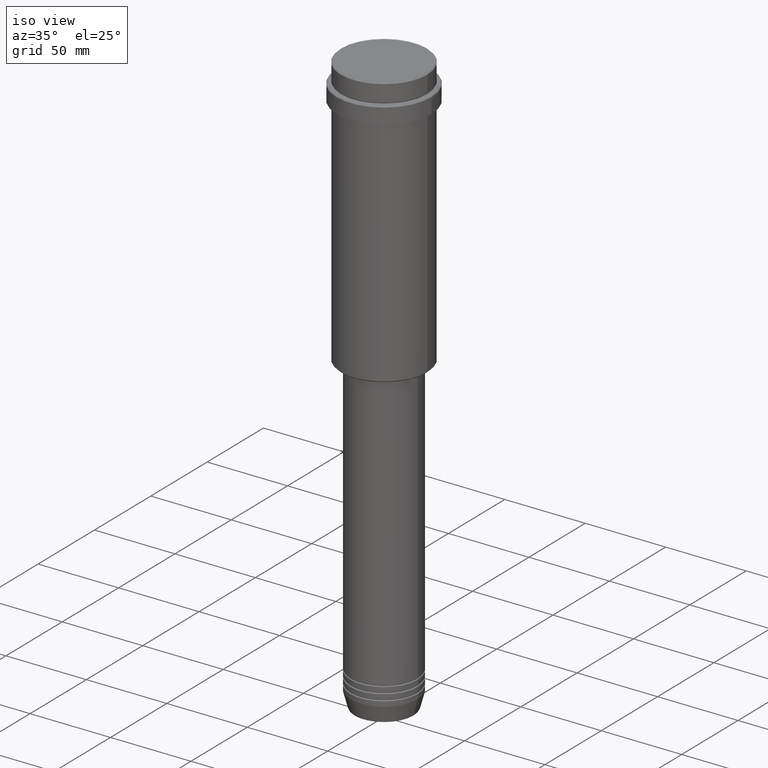
[diagram: clean part render]
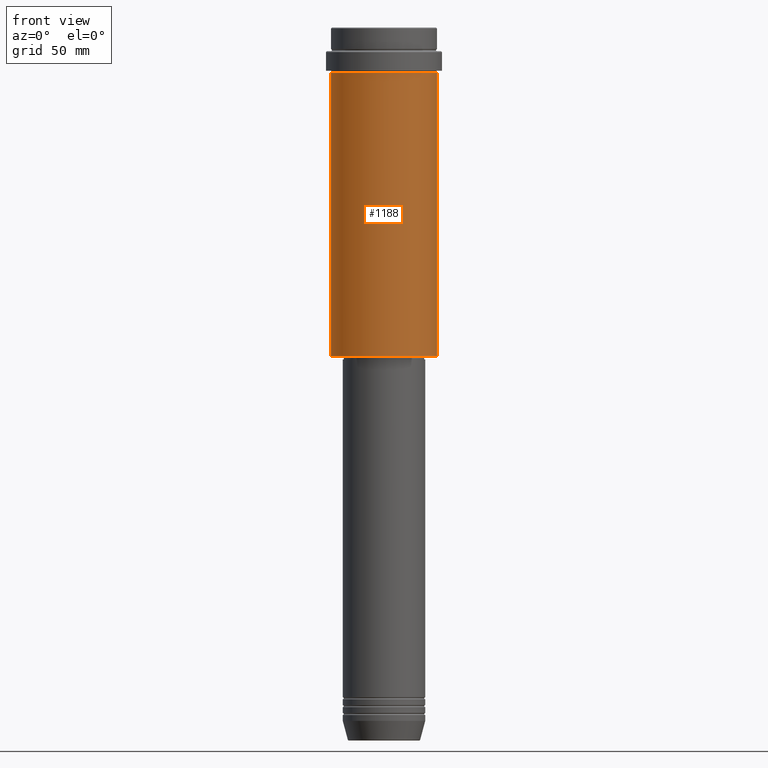
[diagram: tour spotlight — one face highlighted and labeled with its STEP entity id]
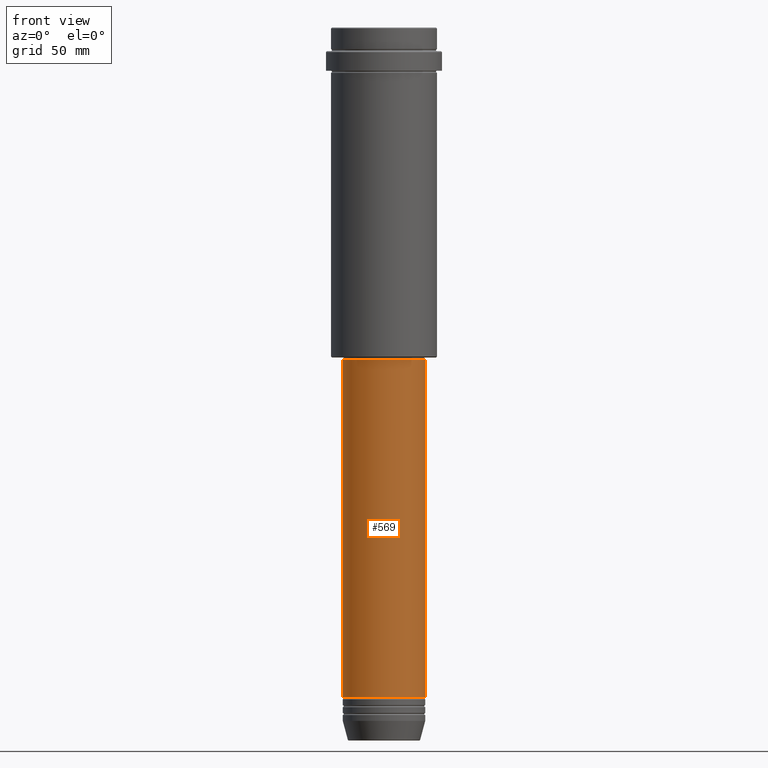
[diagram: tour spotlight — one face highlighted and labeled with its STEP entity id]
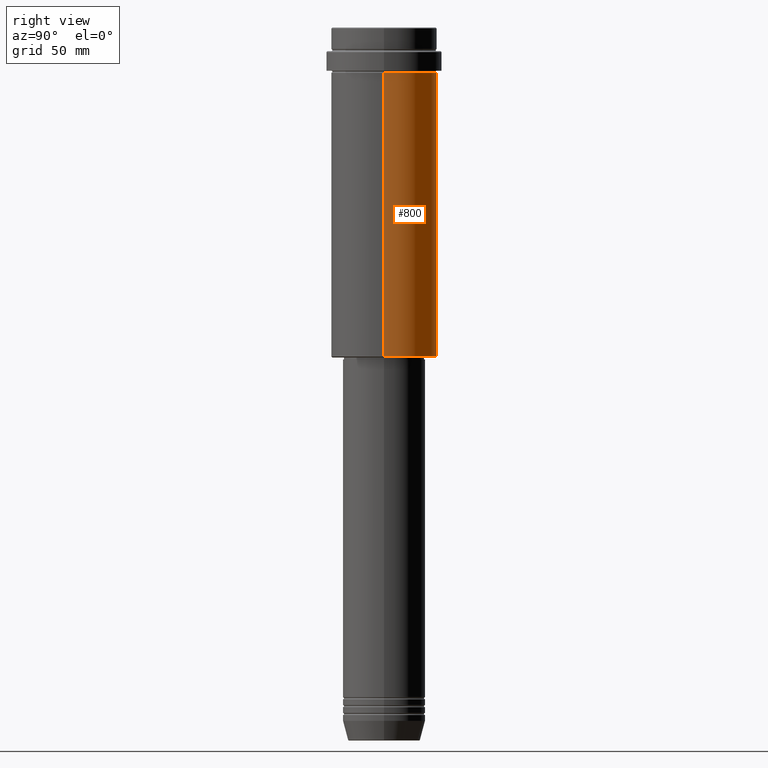
[diagram: tour spotlight — one face highlighted and labeled with its STEP entity id]
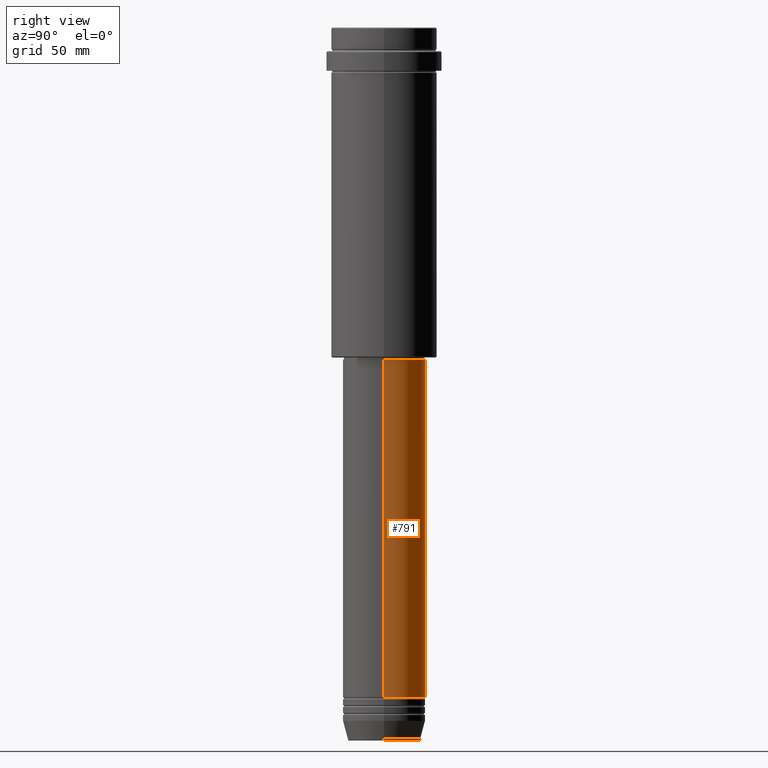
[diagram: tour spotlight — one face highlighted and labeled with its STEP entity id]
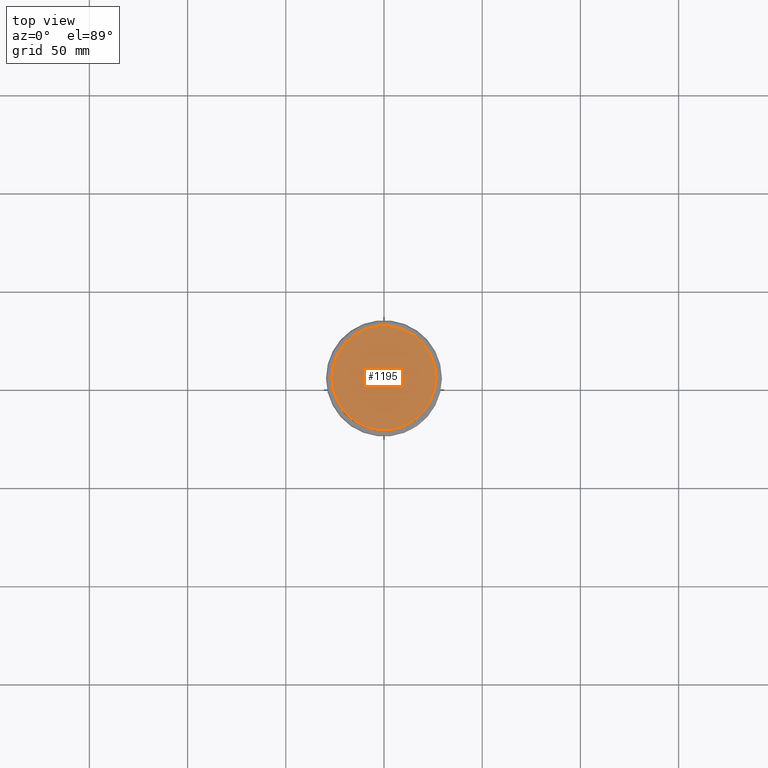
[diagram: tour spotlight — one face highlighted and labeled with its STEP entity id]
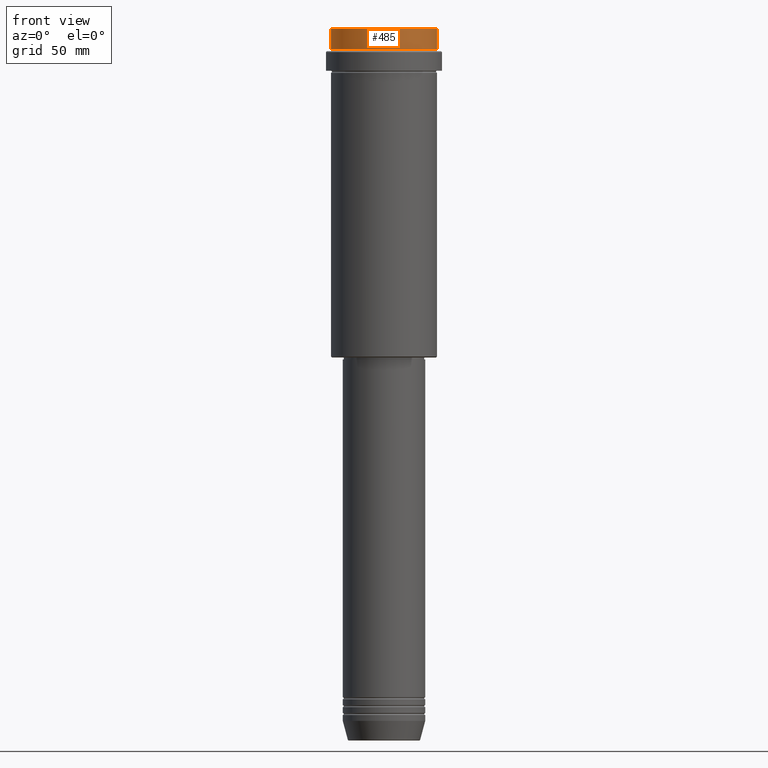
[diagram: tour spotlight — one face highlighted and labeled with its STEP entity id]
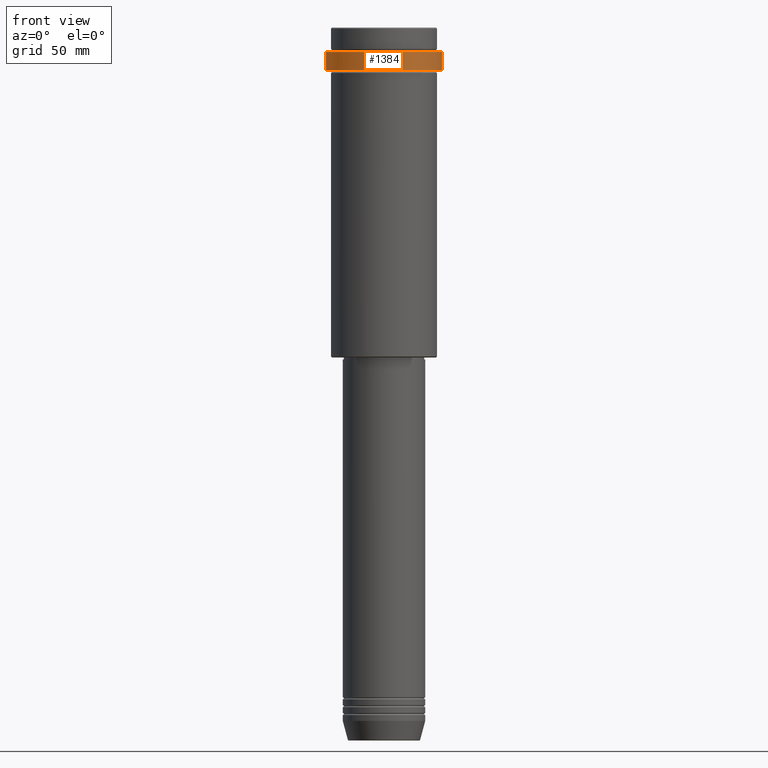
[diagram: tour spotlight — one face highlighted and labeled with its STEP entity id]
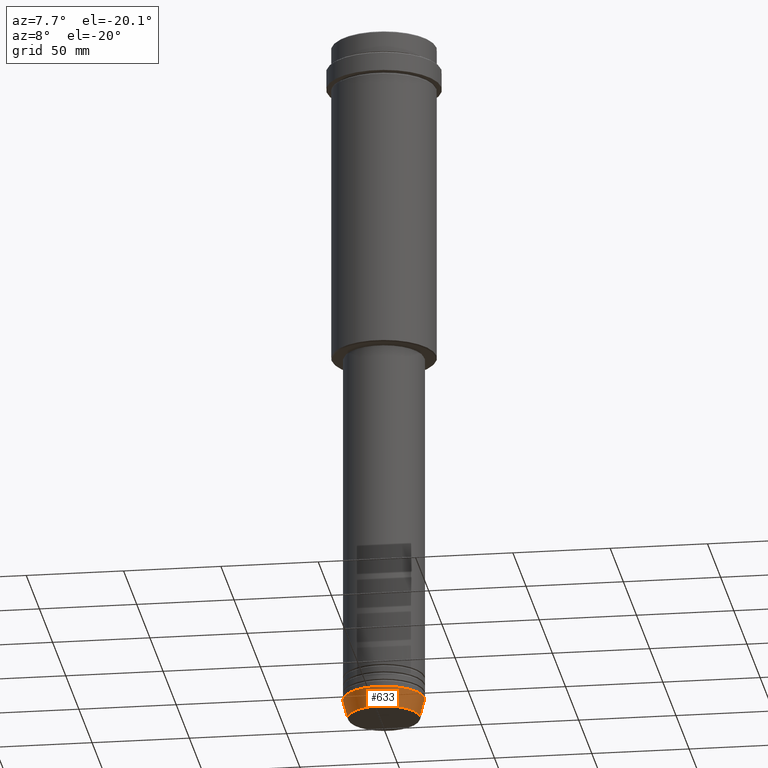
[diagram: tour spotlight — one face highlighted and labeled with its STEP entity id]
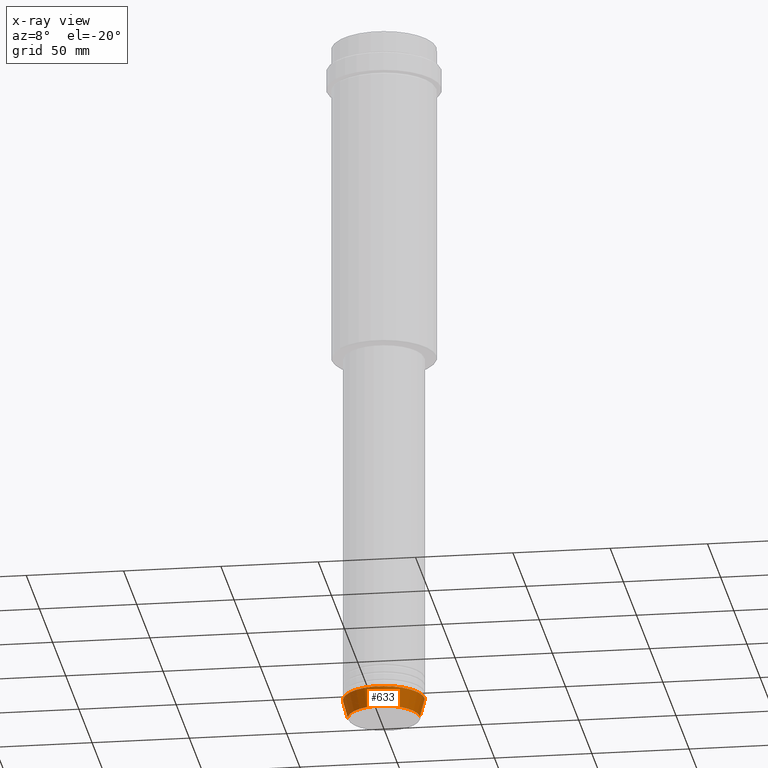
[diagram: x-ray of the same camera — body ghosted, this tour face saturated]
A machine part: a face-by-face anatomy tour. The part has 52 B-rep faces; the first image is the clean iso view, then the 8 largest visible faces are spotlighted one at a time (largest first), each with its STEP entity span.

Face 1 — front view, entity #1188. In plain terms, the highlighted cylindrical surface (partial cylindrical patch) has radius 27 mm, axis along (-0, -0, 1).
Definition (entity closure, byte-faithful):
#18 = VERTEX_POINT ( 'NONE', #69 ) ;
#43 = EDGE_CURVE ( 'NONE', #18, #999, #160, .T. ) ;
#69 = CARTESIAN_POINT ( 'NONE',  ( 27.00000000000000355, 0.000000000000000000, -167.5000000000000568 ) ) ;
#73 = VECTOR ( 'NONE', #132, 1000.000000000000000 ) ;
#87 = CARTESIAN_POINT ( 'NONE',  ( 0.000000000000000000, 0.000000000000000000, -167.5000000000000568 ) ) ;
#132 = DIRECTION ( 'NONE',  ( -0.000000000000000000, -0.000000000000000000, 1.000000000000000000 ) ) ;
#160 = LINE ( 'NONE', #1357, #73 ) ;
#190 = AXIS2_PLACEMENT_3D ( 'NONE', #1174, #194, #314 ) ;
#194 = DIRECTION ( 'NONE',  ( -0.000000000000000000, -0.000000000000000000, 1.000000000000000000 ) ) ;
#204 = CIRCLE ( 'NONE', #1014, 27.00000000000000355 ) ;
#208 = DIRECTION ( 'NONE',  ( 1.000000000000000000, 0.000000000000000000, 0.000000000000000000 ) ) ;
#222 = LINE ( 'NONE', #958, #846 ) ;
#314 = DIRECTION ( 'NONE',  ( 1.000000000000000000, 0.000000000000000000, 0.000000000000000000 ) ) ;
#435 = CARTESIAN_POINT ( 'NONE',  ( 0.000000000000000000, 0.000000000000000000, -23.00000000000001421 ) ) ;
#448 = CYLINDRICAL_SURFACE ( 'NONE', #190, 27.00000000000000355 ) ;
#526 = DIRECTION ( 'NONE',  ( -0.000000000000000000, -0.000000000000000000, 1.000000000000000000 ) ) ;
#619 = VERTEX_POINT ( 'NONE', #718 ) ;
#718 = CARTESIAN_POINT ( 'NONE',  ( -27.00000000000000355, 3.306546357697854128E-15, -167.5000000000000568 ) ) ;
#738 = ORIENTED_EDGE ( 'NONE', *, *, #1161, .F. ) ;
#766 = EDGE_CURVE ( 'NONE', #619, #1366, #222, .T. ) ;
#785 = CIRCLE ( 'NONE', #991, 27.00000000000000355 ) ;
#846 = VECTOR ( 'NONE', #1398, 1000.000000000000000 ) ;
#864 = DIRECTION ( 'NONE',  ( -0.000000000000000000, -0.000000000000000000, 1.000000000000000000 ) ) ;
#956 = DIRECTION ( 'NONE',  ( -1.000000000000000000, 0.000000000000000000, 0.000000000000000000 ) ) ;
#958 = CARTESIAN_POINT ( 'NONE',  ( -27.00000000000000355, 3.306546357697854128E-15, 0.000000000000000000 ) ) ;
#991 = AXIS2_PLACEMENT_3D ( 'NONE', #87, #526, #956 ) ;
#999 = VERTEX_POINT ( 'NONE', #1382 ) ;
#1014 = AXIS2_PLACEMENT_3D ( 'NONE', #435, #864, #208 ) ;
#1017 = ORIENTED_EDGE ( 'NONE', *, *, #1201, .T. ) ;
#1019 = EDGE_LOOP ( 'NONE', ( #1167, #1017, #1143, #738 ) ) ;
#1143 = ORIENTED_EDGE ( 'NONE', *, *, #43, .T. ) ;
#1161 = EDGE_CURVE ( 'NONE', #1366, #999, #204, .T. ) ;
#1167 = ORIENTED_EDGE ( 'NONE', *, *, #766, .F. ) ;
#1174 = CARTESIAN_POINT ( 'NONE',  ( 0.000000000000000000, 0.000000000000000000, 0.000000000000000000 ) ) ;
#1188 = ADVANCED_FACE ( 'NONE', ( #1296 ), #448, .T. ) ;
#1201 = EDGE_CURVE ( 'NONE', #619, #18, #785, .T. ) ;
#1268 = CARTESIAN_POINT ( 'NONE',  ( -27.00000000000000355, 3.306546357697854128E-15, -23.00000000000001421 ) ) ;
#1296 = FACE_OUTER_BOUND ( 'NONE', #1019, .T. ) ;
#1357 = CARTESIAN_POINT ( 'NONE',  ( 27.00000000000000355, 0.000000000000000000, 0.000000000000000000 ) ) ;
#1366 = VERTEX_POINT ( 'NONE', #1268 ) ;
#1382 = CARTESIAN_POINT ( 'NONE',  ( 27.00000000000000355, 0.000000000000000000, -23.00000000000001421 ) ) ;
#1398 = DIRECTION ( 'NONE',  ( -0.000000000000000000, -0.000000000000000000, 1.000000000000000000 ) ) ;

Face 2 — front view, entity #569. In plain terms, the highlighted cylindrical surface (partial cylindrical patch) has radius 21 mm, axis along (-0, -0, 1).
Definition (entity closure, byte-faithful):
#95 = CIRCLE ( 'NONE', #917, 21.00000000000000000 ) ;
#124 = CARTESIAN_POINT ( 'NONE',  ( 21.00000000000000000, 0.000000000000000000, -340.9999999999998863 ) ) ;
#152 = DIRECTION ( 'NONE',  ( -0.000000000000000000, -0.000000000000000000, 1.000000000000000000 ) ) ;
#173 = VERTEX_POINT ( 'NONE', #1193 ) ;
#206 = ORIENTED_EDGE ( 'NONE', *, *, #733, .T. ) ;
#214 = CARTESIAN_POINT ( 'NONE',  ( 0.000000000000000000, 0.000000000000000000, -340.9999999999998863 ) ) ;
#223 = CYLINDRICAL_SURFACE ( 'NONE', #1301, 21.00000000000000000 ) ;
#253 = LINE ( 'NONE', #594, #536 ) ;
#262 = EDGE_CURVE ( 'NONE', #173, #946, #1375, .T. ) ;
#285 = DIRECTION ( 'NONE',  ( -0.000000000000000000, -0.000000000000000000, 1.000000000000000000 ) ) ;
#527 = ORIENTED_EDGE ( 'NONE', *, *, #262, .F. ) ;
#536 = VECTOR ( 'NONE', #588, 1000.000000000000000 ) ;
#545 = DIRECTION ( 'NONE',  ( -0.000000000000000000, -0.000000000000000000, 1.000000000000000000 ) ) ;
#569 = ADVANCED_FACE ( 'NONE', ( #654 ), #223, .T. ) ;
#588 = DIRECTION ( 'NONE',  ( -0.000000000000000000, -0.000000000000000000, 1.000000000000000000 ) ) ;
#594 = CARTESIAN_POINT ( 'NONE',  ( -21.00000000000000000, 2.571758278209441661E-15, 0.000000000000000000 ) ) ;
#654 = FACE_OUTER_BOUND ( 'NONE', #1068, .T. ) ;
#733 = EDGE_CURVE ( 'NONE', #1206, #1333, #95, .T. ) ;
#760 = AXIS2_PLACEMENT_3D ( 'NONE', #983, #545, #1192 ) ;
#776 = DIRECTION ( 'NONE',  ( 1.000000000000000000, 0.000000000000000000, 0.000000000000000000 ) ) ;
#836 = EDGE_CURVE ( 'NONE', #1206, #173, #253, .T. ) ;
#855 = DIRECTION ( 'NONE',  ( -0.000000000000000000, -0.000000000000000000, 1.000000000000000000 ) ) ;
#861 = EDGE_CURVE ( 'NONE', #1333, #946, #1220, .T. ) ;
#908 = CARTESIAN_POINT ( 'NONE',  ( 21.00000000000000000, 0.000000000000000000, 0.000000000000000000 ) ) ;
#917 = AXIS2_PLACEMENT_3D ( 'NONE', #214, #855, #776 ) ;
#946 = VERTEX_POINT ( 'NONE', #1145 ) ;
#983 = CARTESIAN_POINT ( 'NONE',  ( 0.000000000000000000, 0.000000000000000000, -168.9999999999999432 ) ) ;
#989 = VECTOR ( 'NONE', #152, 1000.000000000000000 ) ;
#1068 = EDGE_LOOP ( 'NONE', ( #1325, #206, #1217, #527 ) ) ;
#1145 = CARTESIAN_POINT ( 'NONE',  ( 21.00000000000000000, 0.000000000000000000, -168.9999999999999432 ) ) ;
#1192 = DIRECTION ( 'NONE',  ( 1.000000000000000000, 0.000000000000000000, 0.000000000000000000 ) ) ;
#1193 = CARTESIAN_POINT ( 'NONE',  ( -21.00000000000000000, 2.571758278209441661E-15, -168.9999999999999432 ) ) ;
#1206 = VERTEX_POINT ( 'NONE', #1393 ) ;
#1217 = ORIENTED_EDGE ( 'NONE', *, *, #861, .T. ) ;
#1220 = LINE ( 'NONE', #908, #989 ) ;
#1224 = DIRECTION ( 'NONE',  ( 1.000000000000000000, 0.000000000000000000, 0.000000000000000000 ) ) ;
#1301 = AXIS2_PLACEMENT_3D ( 'NONE', #1388, #285, #1224 ) ;
#1325 = ORIENTED_EDGE ( 'NONE', *, *, #836, .F. ) ;
#1333 = VERTEX_POINT ( 'NONE', #124 ) ;
#1375 = CIRCLE ( 'NONE', #760, 21.00000000000000000 ) ;
#1388 = CARTESIAN_POINT ( 'NONE',  ( 0.000000000000000000, 0.000000000000000000, 0.000000000000000000 ) ) ;
#1393 = CARTESIAN_POINT ( 'NONE',  ( -21.00000000000000000, 2.571758278209441661E-15, -340.9999999999998863 ) ) ;

Face 3 — right view, entity #800. In plain terms, the highlighted cylindrical surface (partial cylindrical patch) has radius 27 mm, axis along (-0, -0, 1).
Definition (entity closure, byte-faithful):
#18 = VERTEX_POINT ( 'NONE', #69 ) ;
#43 = EDGE_CURVE ( 'NONE', #18, #999, #160, .T. ) ;
#69 = CARTESIAN_POINT ( 'NONE',  ( 27.00000000000000355, 0.000000000000000000, -167.5000000000000568 ) ) ;
#73 = VECTOR ( 'NONE', #132, 1000.000000000000000 ) ;
#132 = DIRECTION ( 'NONE',  ( -0.000000000000000000, -0.000000000000000000, 1.000000000000000000 ) ) ;
#147 = FACE_OUTER_BOUND ( 'NONE', #863, .T. ) ;
#160 = LINE ( 'NONE', #1357, #73 ) ;
#169 = CARTESIAN_POINT ( 'NONE',  ( 0.000000000000000000, 0.000000000000000000, -23.00000000000001421 ) ) ;
#217 = ORIENTED_EDGE ( 'NONE', *, *, #766, .T. ) ;
#222 = LINE ( 'NONE', #958, #846 ) ;
#232 = CYLINDRICAL_SURFACE ( 'NONE', #1210, 27.00000000000000355 ) ;
#286 = ORIENTED_EDGE ( 'NONE', *, *, #775, .T. ) ;
#410 = ORIENTED_EDGE ( 'NONE', *, *, #995, .F. ) ;
#419 = CARTESIAN_POINT ( 'NONE',  ( 0.000000000000000000, 0.000000000000000000, -167.5000000000000568 ) ) ;
#474 = DIRECTION ( 'NONE',  ( 1.000000000000000000, 0.000000000000000000, 0.000000000000000000 ) ) ;
#494 = AXIS2_PLACEMENT_3D ( 'NONE', #169, #1374, #517 ) ;
#517 = DIRECTION ( 'NONE',  ( 1.000000000000000000, 0.000000000000000000, 0.000000000000000000 ) ) ;
#557 = AXIS2_PLACEMENT_3D ( 'NONE', #419, #1074, #849 ) ;
#619 = VERTEX_POINT ( 'NONE', #718 ) ;
#718 = CARTESIAN_POINT ( 'NONE',  ( -27.00000000000000355, 3.306546357697854128E-15, -167.5000000000000568 ) ) ;
#750 = ORIENTED_EDGE ( 'NONE', *, *, #43, .F. ) ;
#766 = EDGE_CURVE ( 'NONE', #619, #1366, #222, .T. ) ;
#775 = EDGE_CURVE ( 'NONE', #18, #619, #1263, .T. ) ;
#789 = CARTESIAN_POINT ( 'NONE',  ( 0.000000000000000000, 0.000000000000000000, 0.000000000000000000 ) ) ;
#800 = ADVANCED_FACE ( 'NONE', ( #147 ), #232, .T. ) ;
#846 = VECTOR ( 'NONE', #1398, 1000.000000000000000 ) ;
#849 = DIRECTION ( 'NONE',  ( -1.000000000000000000, 0.000000000000000000, 0.000000000000000000 ) ) ;
#863 = EDGE_LOOP ( 'NONE', ( #286, #217, #410, #750 ) ) ;
#958 = CARTESIAN_POINT ( 'NONE',  ( -27.00000000000000355, 3.306546357697854128E-15, 0.000000000000000000 ) ) ;
#995 = EDGE_CURVE ( 'NONE', #999, #1366, #1099, .T. ) ;
#999 = VERTEX_POINT ( 'NONE', #1382 ) ;
#1074 = DIRECTION ( 'NONE',  ( -0.000000000000000000, -0.000000000000000000, 1.000000000000000000 ) ) ;
#1099 = CIRCLE ( 'NONE', #494, 27.00000000000000355 ) ;
#1210 = AXIS2_PLACEMENT_3D ( 'NONE', #789, #1343, #474 ) ;
#1263 = CIRCLE ( 'NONE', #557, 27.00000000000000355 ) ;
#1268 = CARTESIAN_POINT ( 'NONE',  ( -27.00000000000000355, 3.306546357697854128E-15, -23.00000000000001421 ) ) ;
#1343 = DIRECTION ( 'NONE',  ( -0.000000000000000000, -0.000000000000000000, 1.000000000000000000 ) ) ;
#1357 = CARTESIAN_POINT ( 'NONE',  ( 27.00000000000000355, 0.000000000000000000, 0.000000000000000000 ) ) ;
#1366 = VERTEX_POINT ( 'NONE', #1268 ) ;
#1374 = DIRECTION ( 'NONE',  ( -0.000000000000000000, -0.000000000000000000, 1.000000000000000000 ) ) ;
#1382 = CARTESIAN_POINT ( 'NONE',  ( 27.00000000000000355, 0.000000000000000000, -23.00000000000001421 ) ) ;
#1398 = DIRECTION ( 'NONE',  ( -0.000000000000000000, -0.000000000000000000, 1.000000000000000000 ) ) ;

Face 4 — right view, entity #791. In plain terms, the highlighted cylindrical surface (partial cylindrical patch) has radius 21 mm, axis along (-0, -0, 1).
Definition (entity closure, byte-faithful):
#42 = DIRECTION ( 'NONE',  ( -0.000000000000000000, -0.000000000000000000, 1.000000000000000000 ) ) ;
#47 = EDGE_LOOP ( 'NONE', ( #1045, #933, #377, #591 ) ) ;
#124 = CARTESIAN_POINT ( 'NONE',  ( 21.00000000000000000, 0.000000000000000000, -340.9999999999998863 ) ) ;
#134 = EDGE_CURVE ( 'NONE', #1333, #1206, #827, .T. ) ;
#148 = EDGE_CURVE ( 'NONE', #946, #173, #842, .T. ) ;
#152 = DIRECTION ( 'NONE',  ( -0.000000000000000000, -0.000000000000000000, 1.000000000000000000 ) ) ;
#173 = VERTEX_POINT ( 'NONE', #1193 ) ;
#253 = LINE ( 'NONE', #594, #536 ) ;
#305 = DIRECTION ( 'NONE',  ( 1.000000000000000000, 0.000000000000000000, 0.000000000000000000 ) ) ;
#347 = DIRECTION ( 'NONE',  ( 1.000000000000000000, 0.000000000000000000, 0.000000000000000000 ) ) ;
#365 = AXIS2_PLACEMENT_3D ( 'NONE', #1108, #1027, #347 ) ;
#377 = ORIENTED_EDGE ( 'NONE', *, *, #148, .F. ) ;
#455 = CYLINDRICAL_SURFACE ( 'NONE', #365, 21.00000000000000000 ) ;
#532 = AXIS2_PLACEMENT_3D ( 'NONE', #902, #42, #1259 ) ;
#536 = VECTOR ( 'NONE', #588, 1000.000000000000000 ) ;
#588 = DIRECTION ( 'NONE',  ( -0.000000000000000000, -0.000000000000000000, 1.000000000000000000 ) ) ;
#591 = ORIENTED_EDGE ( 'NONE', *, *, #861, .F. ) ;
#594 = CARTESIAN_POINT ( 'NONE',  ( -21.00000000000000000, 2.571758278209441661E-15, 0.000000000000000000 ) ) ;
#791 = ADVANCED_FACE ( 'NONE', ( #1212 ), #455, .T. ) ;
#827 = CIRCLE ( 'NONE', #532, 21.00000000000000000 ) ;
#836 = EDGE_CURVE ( 'NONE', #1206, #173, #253, .T. ) ;
#837 = DIRECTION ( 'NONE',  ( -0.000000000000000000, -0.000000000000000000, 1.000000000000000000 ) ) ;
#842 = CIRCLE ( 'NONE', #916, 21.00000000000000000 ) ;
#861 = EDGE_CURVE ( 'NONE', #1333, #946, #1220, .T. ) ;
#902 = CARTESIAN_POINT ( 'NONE',  ( 0.000000000000000000, 0.000000000000000000, -340.9999999999998863 ) ) ;
#908 = CARTESIAN_POINT ( 'NONE',  ( 21.00000000000000000, 0.000000000000000000, 0.000000000000000000 ) ) ;
#916 = AXIS2_PLACEMENT_3D ( 'NONE', #1270, #837, #305 ) ;
#933 = ORIENTED_EDGE ( 'NONE', *, *, #836, .T. ) ;
#946 = VERTEX_POINT ( 'NONE', #1145 ) ;
#989 = VECTOR ( 'NONE', #152, 1000.000000000000000 ) ;
#1027 = DIRECTION ( 'NONE',  ( -0.000000000000000000, -0.000000000000000000, 1.000000000000000000 ) ) ;
#1045 = ORIENTED_EDGE ( 'NONE', *, *, #134, .T. ) ;
#1108 = CARTESIAN_POINT ( 'NONE',  ( 0.000000000000000000, 0.000000000000000000, 0.000000000000000000 ) ) ;
#1145 = CARTESIAN_POINT ( 'NONE',  ( 21.00000000000000000, 0.000000000000000000, -168.9999999999999432 ) ) ;
#1193 = CARTESIAN_POINT ( 'NONE',  ( -21.00000000000000000, 2.571758278209441661E-15, -168.9999999999999432 ) ) ;
#1206 = VERTEX_POINT ( 'NONE', #1393 ) ;
#1212 = FACE_OUTER_BOUND ( 'NONE', #47, .T. ) ;
#1220 = LINE ( 'NONE', #908, #989 ) ;
#1259 = DIRECTION ( 'NONE',  ( 1.000000000000000000, 0.000000000000000000, 0.000000000000000000 ) ) ;
#1270 = CARTESIAN_POINT ( 'NONE',  ( 0.000000000000000000, 0.000000000000000000, -168.9999999999999432 ) ) ;
#1333 = VERTEX_POINT ( 'NONE', #124 ) ;
#1393 = CARTESIAN_POINT ( 'NONE',  ( -21.00000000000000000, 2.571758278209441661E-15, -340.9999999999998863 ) ) ;

Face 5 — top view, entity #1195. In plain terms, the highlighted planar face has unit normal (0, -0, 1).
Definition (entity closure, byte-faithful):
#8 = CIRCLE ( 'NONE', #807, 26.50000000000002487 ) ;
#45 = ORIENTED_EDGE ( 'NONE', *, *, #1070, .T. ) ;
#140 = CARTESIAN_POINT ( 'NONE',  ( 26.50000000000002487, 3.275930187719171524E-15, 0.000000000000000000 ) ) ;
#159 = DIRECTION ( 'NONE',  ( 1.000000000000000000, 0.000000000000000000, 0.000000000000000000 ) ) ;
#252 = AXIS2_PLACEMENT_3D ( 'NONE', #1066, #1190, #761 ) ;
#375 = CARTESIAN_POINT ( 'NONE',  ( 0.000000000000000000, 0.000000000000000000, 0.000000000000000000 ) ) ;
#421 = DIRECTION ( 'NONE',  ( 1.000000000000000000, 0.000000000000000000, 0.000000000000000000 ) ) ;
#518 = ORIENTED_EDGE ( 'NONE', *, *, #1142, .T. ) ;
#533 = CARTESIAN_POINT ( 'NONE',  ( 0.000000000000000000, 0.000000000000000000, 0.000000000000000000 ) ) ;
#538 = CIRCLE ( 'NONE', #1211, 26.50000000000002487 ) ;
#608 = VERTEX_POINT ( 'NONE', #140 ) ;
#635 = PLANE ( 'NONE',  #252 ) ;
#761 = DIRECTION ( 'NONE',  ( 1.000000000000000000, 0.000000000000000000, 0.000000000000000000 ) ) ;
#807 = AXIS2_PLACEMENT_3D ( 'NONE', #375, #833, #159 ) ;
#833 = DIRECTION ( 'NONE',  ( -0.000000000000000000, -0.000000000000000000, 1.000000000000000000 ) ) ;
#848 = FACE_OUTER_BOUND ( 'NONE', #1221, .T. ) ;
#1066 = CARTESIAN_POINT ( 'NONE',  ( 0.000000000000000000, 0.000000000000000000, 0.000000000000000000 ) ) ;
#1070 = EDGE_CURVE ( 'NONE', #1138, #608, #8, .T. ) ;
#1138 = VERTEX_POINT ( 'NONE', #1180 ) ;
#1142 = EDGE_CURVE ( 'NONE', #608, #1138, #538, .T. ) ;
#1180 = CARTESIAN_POINT ( 'NONE',  ( -26.50000000000002487, 0.000000000000000000, 0.000000000000000000 ) ) ;
#1190 = DIRECTION ( 'NONE',  ( 0.000000000000000000, -0.000000000000000000, 1.000000000000000000 ) ) ;
#1194 = DIRECTION ( 'NONE',  ( -0.000000000000000000, -0.000000000000000000, 1.000000000000000000 ) ) ;
#1195 = ADVANCED_FACE ( 'NONE', ( #848 ), #635, .T. ) ;
#1211 = AXIS2_PLACEMENT_3D ( 'NONE', #533, #1194, #421 ) ;
#1221 = EDGE_LOOP ( 'NONE', ( #45, #518 ) ) ;

Face 6 — front view, entity #485. In plain terms, the highlighted cylindrical surface (partial cylindrical patch) has radius 27 mm, axis along (-0, -0, 1).
Definition (entity closure, byte-faithful):
#39 = ORIENTED_EDGE ( 'NONE', *, *, #1115, .T. ) ;
#41 = CARTESIAN_POINT ( 'NONE',  ( 27.00000000000000355, 0.000000000000000000, -11.00000000000000178 ) ) ;
#67 = DIRECTION ( 'NONE',  ( -0.000000000000000000, -0.000000000000000000, 1.000000000000000000 ) ) ;
#94 = LINE ( 'NONE', #1294, #121 ) ;
#121 = VECTOR ( 'NONE', #1291, 1000.000000000000000 ) ;
#237 = DIRECTION ( 'NONE',  ( 1.000000000000000000, 0.000000000000000000, 0.000000000000000000 ) ) ;
#274 = VECTOR ( 'NONE', #67, 1000.000000000000000 ) ;
#313 = EDGE_CURVE ( 'NONE', #341, #698, #379, .T. ) ;
#341 = VERTEX_POINT ( 'NONE', #792 ) ;
#346 = CARTESIAN_POINT ( 'NONE',  ( 0.000000000000000000, 0.000000000000000000, -0.4999999999999241163 ) ) ;
#379 = LINE ( 'NONE', #483, #274 ) ;
#386 = CARTESIAN_POINT ( 'NONE',  ( 0.000000000000000000, 0.000000000000000000, 0.000000000000000000 ) ) ;
#394 = CIRCLE ( 'NONE', #585, 27.00000000000000355 ) ;
#397 = ORIENTED_EDGE ( 'NONE', *, *, #784, .T. ) ;
#483 = CARTESIAN_POINT ( 'NONE',  ( -27.00000000000000355, 3.306546357697854128E-15, 0.000000000000000000 ) ) ;
#485 = ADVANCED_FACE ( 'NONE', ( #1405 ), #1147, .T. ) ;
#546 = CARTESIAN_POINT ( 'NONE',  ( 0.000000000000000000, 0.000000000000000000, -11.00000000000000178 ) ) ;
#585 = AXIS2_PLACEMENT_3D ( 'NONE', #346, #1218, #237 ) ;
#624 = DIRECTION ( 'NONE',  ( 1.000000000000000000, 0.000000000000000000, 0.000000000000000000 ) ) ;
#698 = VERTEX_POINT ( 'NONE', #992 ) ;
#699 = CIRCLE ( 'NONE', #1100, 27.00000000000000355 ) ;
#732 = ORIENTED_EDGE ( 'NONE', *, *, #313, .F. ) ;
#781 = AXIS2_PLACEMENT_3D ( 'NONE', #386, #1272, #624 ) ;
#784 = EDGE_CURVE ( 'NONE', #930, #1380, #94, .T. ) ;
#792 = CARTESIAN_POINT ( 'NONE',  ( -27.00000000000000355, 3.306546357697854128E-15, -11.00000000000000178 ) ) ;
#853 = DIRECTION ( 'NONE',  ( 1.000000000000000000, 0.000000000000000000, 0.000000000000000000 ) ) ;
#910 = EDGE_LOOP ( 'NONE', ( #732, #39, #397, #1052 ) ) ;
#930 = VERTEX_POINT ( 'NONE', #41 ) ;
#961 = CARTESIAN_POINT ( 'NONE',  ( 27.00000000000000355, 0.000000000000000000, -0.4999999999999241163 ) ) ;
#992 = CARTESIAN_POINT ( 'NONE',  ( -27.00000000000000355, 3.306546357697854128E-15, -0.4999999999999241163 ) ) ;
#1052 = ORIENTED_EDGE ( 'NONE', *, *, #1349, .T. ) ;
#1100 = AXIS2_PLACEMENT_3D ( 'NONE', #546, #1305, #853 ) ;
#1115 = EDGE_CURVE ( 'NONE', #341, #930, #699, .T. ) ;
#1147 = CYLINDRICAL_SURFACE ( 'NONE', #781, 27.00000000000000355 ) ;
#1218 = DIRECTION ( 'NONE',  ( 0.000000000000000000, 0.000000000000000000, -1.000000000000000000 ) ) ;
#1272 = DIRECTION ( 'NONE',  ( -0.000000000000000000, -0.000000000000000000, 1.000000000000000000 ) ) ;
#1291 = DIRECTION ( 'NONE',  ( -0.000000000000000000, -0.000000000000000000, 1.000000000000000000 ) ) ;
#1294 = CARTESIAN_POINT ( 'NONE',  ( 27.00000000000000355, 0.000000000000000000, 0.000000000000000000 ) ) ;
#1305 = DIRECTION ( 'NONE',  ( -0.000000000000000000, -0.000000000000000000, 1.000000000000000000 ) ) ;
#1349 = EDGE_CURVE ( 'NONE', #1380, #698, #394, .T. ) ;
#1380 = VERTEX_POINT ( 'NONE', #961 ) ;
#1405 = FACE_OUTER_BOUND ( 'NONE', #910, .T. ) ;

Face 7 — front view, entity #1384. In plain terms, the highlighted cylindrical surface (partial cylindrical patch) has radius 29.5 mm, axis along (-0, -0, 1).
Definition (entity closure, byte-faithful):
#267 = CARTESIAN_POINT ( 'NONE',  ( -29.49999999999999645, 3.612708057484690815E-15, -22.00000000000000711 ) ) ;
#278 = VECTOR ( 'NONE', #968, 1000.000000000000000 ) ;
#281 = EDGE_CURVE ( 'NONE', #1257, #352, #464, .T. ) ;
#352 = VERTEX_POINT ( 'NONE', #371 ) ;
#371 = CARTESIAN_POINT ( 'NONE',  ( -29.50000000000000000, 3.612708057484691604E-15, -12.50000000000006040 ) ) ;
#383 = CARTESIAN_POINT ( 'NONE',  ( 0.000000000000000000, 0.000000000000000000, 0.000000000000000000 ) ) ;
#444 = ORIENTED_EDGE ( 'NONE', *, *, #1124, .T. ) ;
#460 = VERTEX_POINT ( 'NONE', #843 ) ;
#464 = CIRCLE ( 'NONE', #513, 29.50000000000000000 ) ;
#496 = DIRECTION ( 'NONE',  ( 1.000000000000000000, 0.000000000000000000, 0.000000000000000000 ) ) ;
#498 = CARTESIAN_POINT ( 'NONE',  ( -29.50000000000000000, 3.612708057484691604E-15, 0.000000000000000000 ) ) ;
#513 = AXIS2_PLACEMENT_3D ( 'NONE', #1300, #1310, #771 ) ;
#515 = CIRCLE ( 'NONE', #1185, 29.49999999999999645 ) ;
#516 = VECTOR ( 'NONE', #621, 1000.000000000000000 ) ;
#520 = EDGE_CURVE ( 'NONE', #1004, #460, #515, .T. ) ;
#535 = CARTESIAN_POINT ( 'NONE',  ( 0.000000000000000000, 0.000000000000000000, -22.00000000000000711 ) ) ;
#621 = DIRECTION ( 'NONE',  ( -0.000000000000000000, -0.000000000000000000, 1.000000000000000000 ) ) ;
#670 = AXIS2_PLACEMENT_3D ( 'NONE', #383, #914, #496 ) ;
#701 = DIRECTION ( 'NONE',  ( -0.000000000000000000, -0.000000000000000000, 1.000000000000000000 ) ) ;
#713 = ORIENTED_EDGE ( 'NONE', *, *, #942, .F. ) ;
#734 = CYLINDRICAL_SURFACE ( 'NONE', #670, 29.50000000000000000 ) ;
#749 = CARTESIAN_POINT ( 'NONE',  ( 29.50000000000000000, 0.000000000000000000, 0.000000000000000000 ) ) ;
#771 = DIRECTION ( 'NONE',  ( 1.000000000000000000, 0.000000000000000000, 0.000000000000000000 ) ) ;
#840 = LINE ( 'NONE', #498, #516 ) ;
#843 = CARTESIAN_POINT ( 'NONE',  ( 29.49999999999999645, 0.000000000000000000, -22.00000000000000711 ) ) ;
#880 = ORIENTED_EDGE ( 'NONE', *, *, #520, .T. ) ;
#906 = CARTESIAN_POINT ( 'NONE',  ( 29.50000000000000000, 0.000000000000000000, -12.50000000000006040 ) ) ;
#914 = DIRECTION ( 'NONE',  ( -0.000000000000000000, -0.000000000000000000, 1.000000000000000000 ) ) ;
#942 = EDGE_CURVE ( 'NONE', #1004, #352, #840, .T. ) ;
#968 = DIRECTION ( 'NONE',  ( -0.000000000000000000, -0.000000000000000000, 1.000000000000000000 ) ) ;
#1001 = ORIENTED_EDGE ( 'NONE', *, *, #281, .T. ) ;
#1004 = VERTEX_POINT ( 'NONE', #267 ) ;
#1041 = FACE_OUTER_BOUND ( 'NONE', #1164, .T. ) ;
#1124 = EDGE_CURVE ( 'NONE', #460, #1257, #1176, .T. ) ;
#1164 = EDGE_LOOP ( 'NONE', ( #713, #880, #444, #1001 ) ) ;
#1176 = LINE ( 'NONE', #749, #278 ) ;
#1185 = AXIS2_PLACEMENT_3D ( 'NONE', #535, #701, #1353 ) ;
#1257 = VERTEX_POINT ( 'NONE', #906 ) ;
#1300 = CARTESIAN_POINT ( 'NONE',  ( 0.000000000000000000, 0.000000000000000000, -12.50000000000006040 ) ) ;
#1310 = DIRECTION ( 'NONE',  ( 0.000000000000000000, 0.000000000000000000, -1.000000000000000000 ) ) ;
#1353 = DIRECTION ( 'NONE',  ( 1.000000000000000000, 0.000000000000000000, 0.000000000000000000 ) ) ;
#1384 = ADVANCED_FACE ( 'NONE', ( #1041 ), #734, .T. ) ;

Face 8 — auxiliary view, entity #633. An x-ray twin of the same camera follows (body ghosted, this face saturated) — the face is partly hidden behind the body. In plain terms, the highlighted conical surface has half-angle 15 deg.
Definition (entity closure, byte-faithful):
#33 = CIRCLE ( 'NONE', #1060, 18.41980749484383750 ) ;
#104 = LINE ( 'NONE', #1191, #829 ) ;
#116 = CARTESIAN_POINT ( 'NONE',  ( 0.000000000000000000, 0.000000000000000000, -353.0000000000000568 ) ) ;
#139 = ORIENTED_EDGE ( 'NONE', *, *, #174, .F. ) ;
#144 = CARTESIAN_POINT ( 'NONE',  ( -21.00000000000000000, 2.571758278209441661E-15, -353.0000000000000568 ) ) ;
#165 = VECTOR ( 'NONE', #425, 1000.000000000000114 ) ;
#174 = EDGE_CURVE ( 'NONE', #467, #456, #656, .T. ) ;
#192 = CARTESIAN_POINT ( 'NONE',  ( -18.41980749484383750, 2.413767053578267458E-15, -362.6294095225512706 ) ) ;
#199 = DIRECTION ( 'NONE',  ( 0.2588190451025211836, 0.000000000000000000, 0.9659258262890680902 ) ) ;
#202 = DIRECTION ( 'NONE',  ( -0.000000000000000000, -0.000000000000000000, 1.000000000000000000 ) ) ;
#355 = CARTESIAN_POINT ( 'NONE',  ( 0.000000000000000000, 0.000000000000000000, -353.0000000000000568 ) ) ;
#387 = EDGE_CURVE ( 'NONE', #456, #451, #490, .T. ) ;
#396 = DIRECTION ( 'NONE',  ( 1.000000000000000000, 0.000000000000000000, 0.000000000000000000 ) ) ;
#405 = DIRECTION ( 'NONE',  ( -0.000000000000000000, -0.000000000000000000, 1.000000000000000000 ) ) ;
#423 = DIRECTION ( 'NONE',  ( 1.000000000000000000, 0.000000000000000000, 0.000000000000000000 ) ) ;
#425 = DIRECTION ( 'NONE',  ( -0.2588190451025211836, 3.169619151431770488E-17, 0.9659258262890680902 ) ) ;
#439 = EDGE_LOOP ( 'NONE', ( #139, #1152, #984, #819 ) ) ;
#451 = VERTEX_POINT ( 'NONE', #682 ) ;
#456 = VERTEX_POINT ( 'NONE', #144 ) ;
#467 = VERTEX_POINT ( 'NONE', #192 ) ;
#490 = CIRCLE ( 'NONE', #1283, 21.00000000000000000 ) ;
#633 = ADVANCED_FACE ( 'NONE', ( #769 ), #663, .T. ) ;
#636 = EDGE_CURVE ( 'NONE', #825, #451, #104, .T. ) ;
#656 = LINE ( 'NONE', #745, #165 ) ;
#663 = CONICAL_SURFACE ( 'NONE', #696, 21.00000000000000000, 0.2617993877991499074 ) ;
#682 = CARTESIAN_POINT ( 'NONE',  ( 21.00000000000000000, 0.000000000000000000, -353.0000000000000568 ) ) ;
#696 = AXIS2_PLACEMENT_3D ( 'NONE', #116, #202, #423 ) ;
#745 = CARTESIAN_POINT ( 'NONE',  ( -21.00000000000000000, 2.571758278209441661E-15, -353.0000000000000568 ) ) ;
#769 = FACE_OUTER_BOUND ( 'NONE', #439, .T. ) ;
#803 = CARTESIAN_POINT ( 'NONE',  ( 18.41980749484383750, 0.000000000000000000, -362.6294095225512706 ) ) ;
#819 = ORIENTED_EDGE ( 'NONE', *, *, #387, .F. ) ;
#825 = VERTEX_POINT ( 'NONE', #803 ) ;
#829 = VECTOR ( 'NONE', #199, 1000.000000000000114 ) ;
#938 = DIRECTION ( 'NONE',  ( 1.000000000000000000, 0.000000000000000000, 0.000000000000000000 ) ) ;
#952 = CARTESIAN_POINT ( 'NONE',  ( 0.000000000000000000, 0.000000000000000000, -362.6294095225512706 ) ) ;
#984 = ORIENTED_EDGE ( 'NONE', *, *, #636, .T. ) ;
#1060 = AXIS2_PLACEMENT_3D ( 'NONE', #952, #405, #938 ) ;
#1063 = EDGE_CURVE ( 'NONE', #467, #825, #33, .T. ) ;
#1152 = ORIENTED_EDGE ( 'NONE', *, *, #1063, .T. ) ;
#1191 = CARTESIAN_POINT ( 'NONE',  ( 21.00000000000000000, 0.000000000000000000, -353.0000000000000568 ) ) ;
#1283 = AXIS2_PLACEMENT_3D ( 'NONE', #355, #1383, #396 ) ;
#1383 = DIRECTION ( 'NONE',  ( -0.000000000000000000, -0.000000000000000000, 1.000000000000000000 ) ) ;